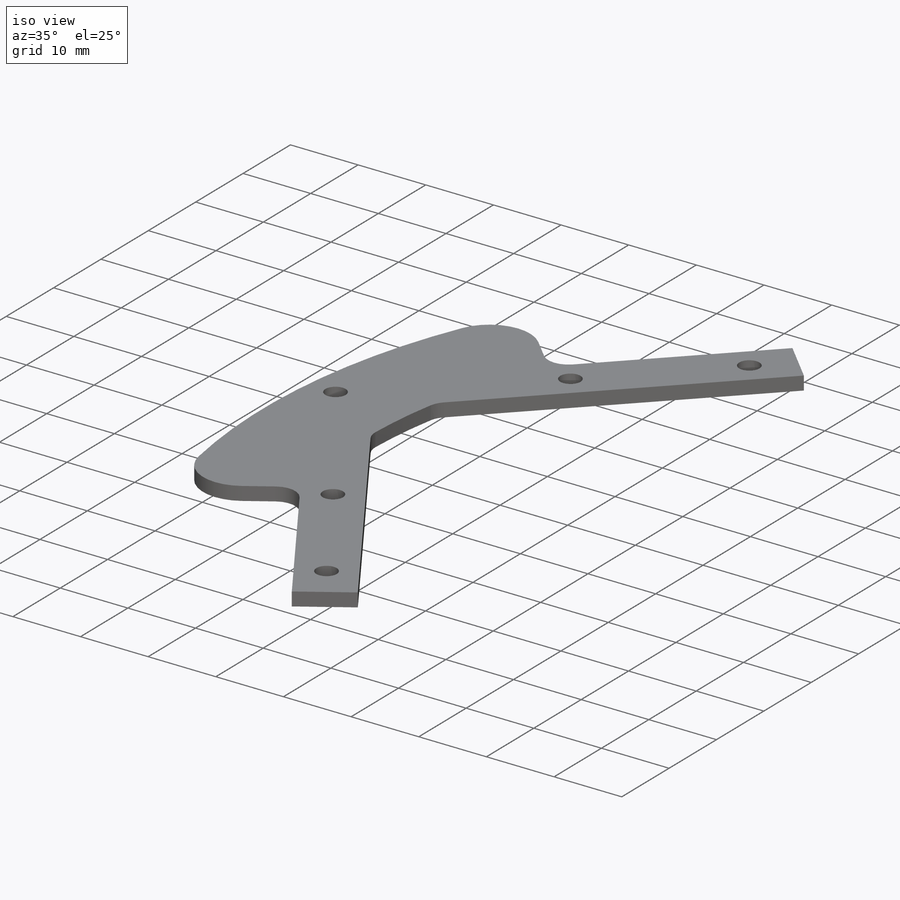
[diagram: iso view]
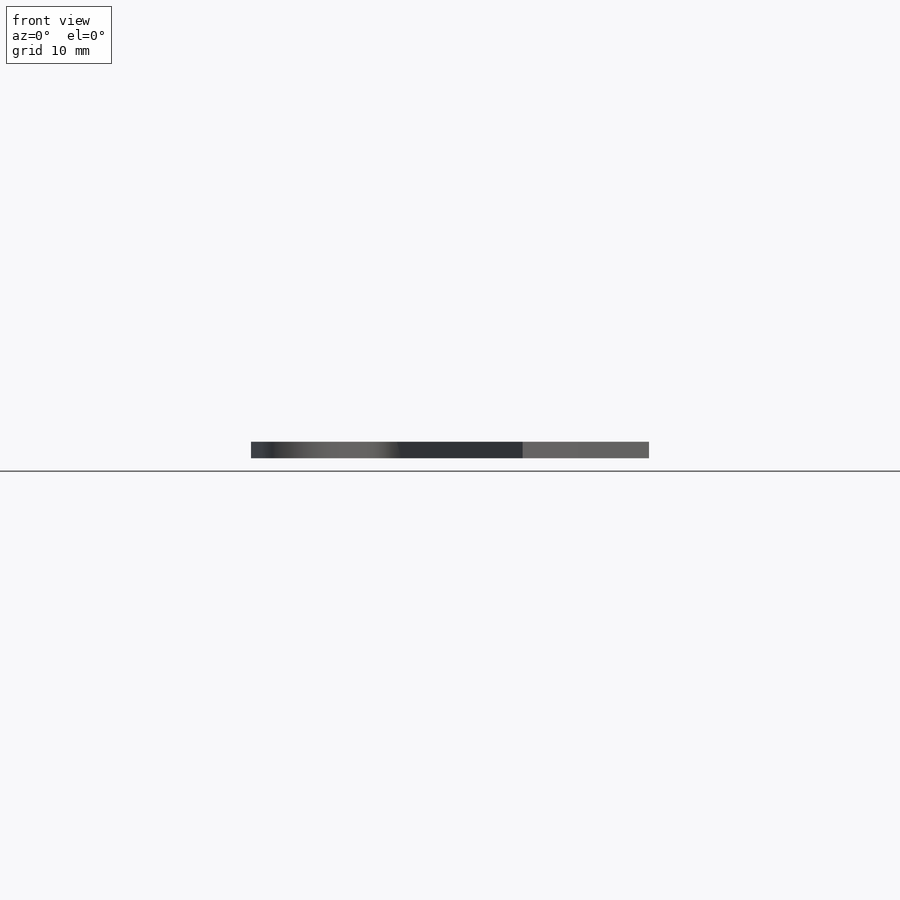
[diagram: front view]
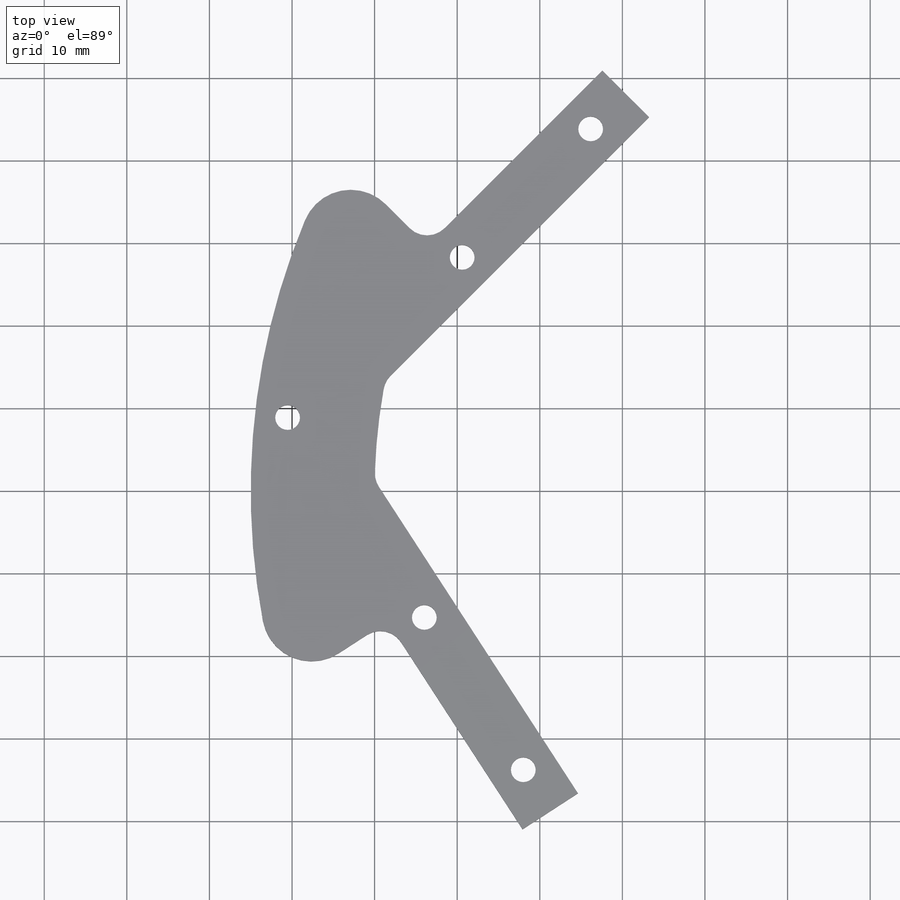
[diagram: top view]
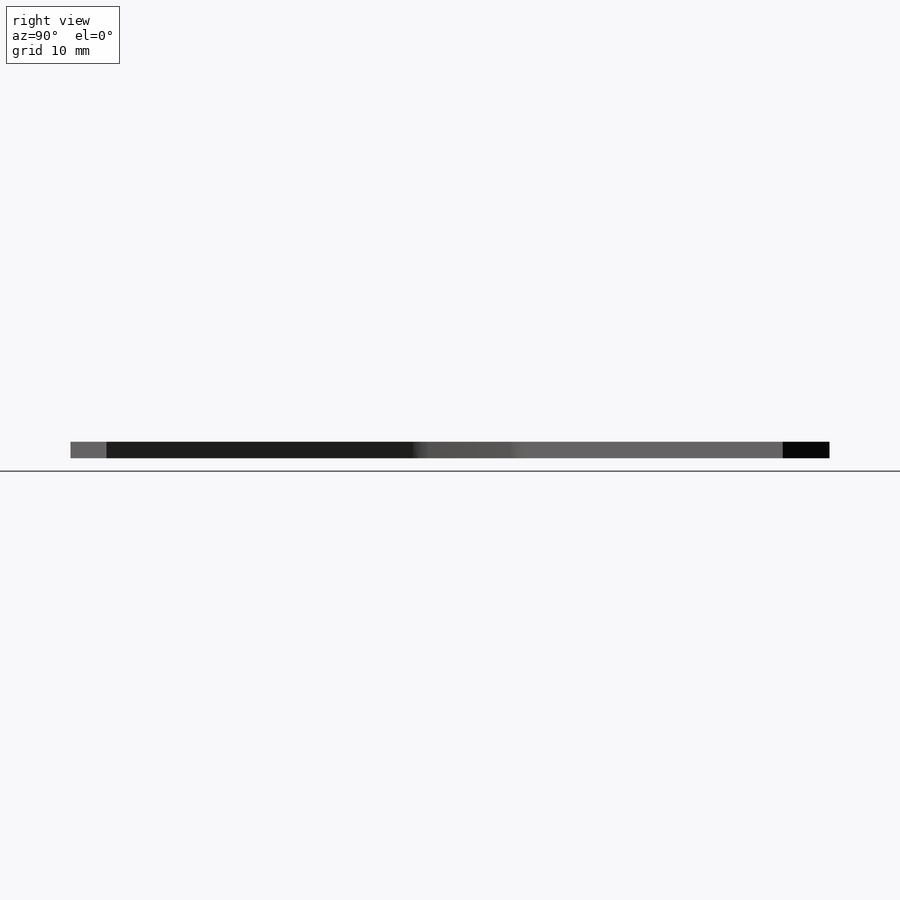
[diagram: right view]
SOLIDWORKS PART (.sldprt)
format: sldprt  version: not decoded by parser v0  size: 182,784 bytes
history: native  units: mm
features: sketch x3, fillet x2, material x1, extrude x1, hole x1 (+11 scaffold rows collapsed)
feature tree (19):
  scaffold x11  (default folders/planes/origin — collapsed)
  material  "Material <not specified>"
  sketch  "Sketch1"  dims[c1.D1=85.0mm c1.D7=3.0mm c1.D17=70.0mm c1.D2=8.0mm c1.D3=~18.903072mm c2.D3=45.0deg c2.D4=~29.593338mm c3.D4=31.0deg c3.D5=24.0mm c3.D6=24.0mm c3.D8=6.0mm c3.D9=22.0mm c3.D3=4.0mm c4.D4=4.0mm c4.D10=22.0mm c4.D11=6.0mm c4.D12=4.0mm c4.D13=4.0mm c4.D14=~56.370009mm c5.D14=45.0deg c5.D15=~48.552556mm c6.D15=33.0deg c6.D16=66.0mm]
  extrude  "Boss-Extrude1"  Depth=2mm
  fillet  "Fillet1"  Radius=6mm
  fillet  "Fillet2"  Radius=3mm
  hole  "Ø3.0 (3) Diameter Hole1"  Diameter=3mm Depth=2mm
  sketch  "Sketch3"  dims[D1=4.0mm]
  sketch  "Sketch2"  dims[hole-wizard template sketch: 60 standard entries collapsed; hole parameters kept: c18.Thru Hole Depth=2.0mm]
decode coverage: 7 of 7 modeling features carry decoded parameters
note: ~ marks probable driven/reference dimensions
note: suppression state not decoded; provenance and decode notes live in map.json
